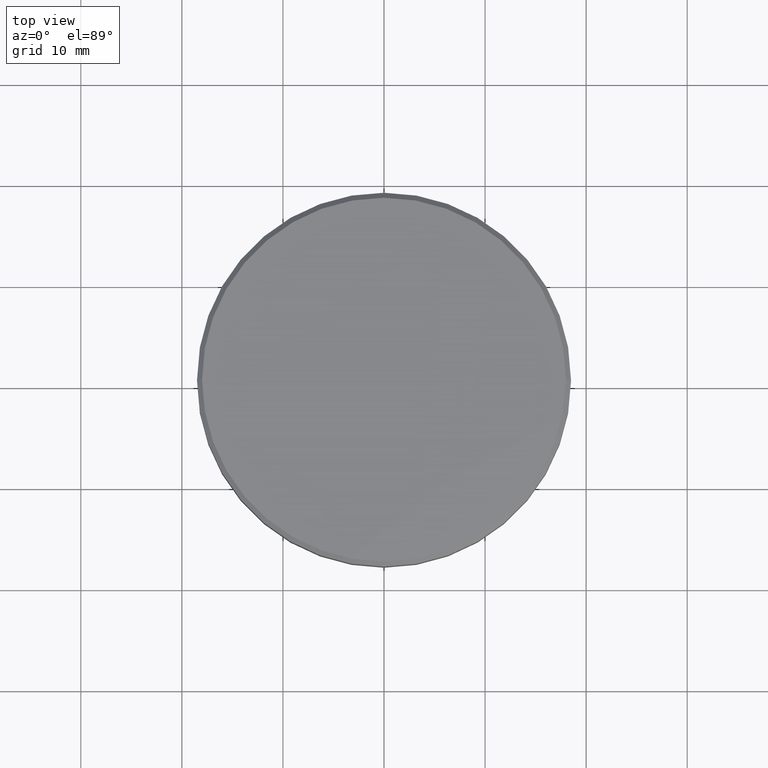
[diagram: clean part render]
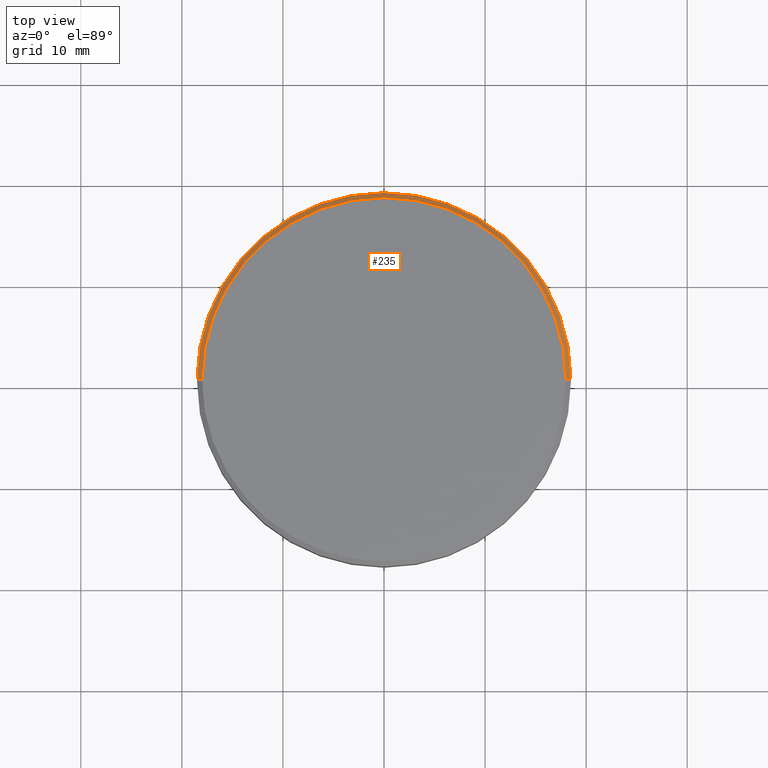
[diagram: same view with one face highlighted and labeled with its STEP entity id]
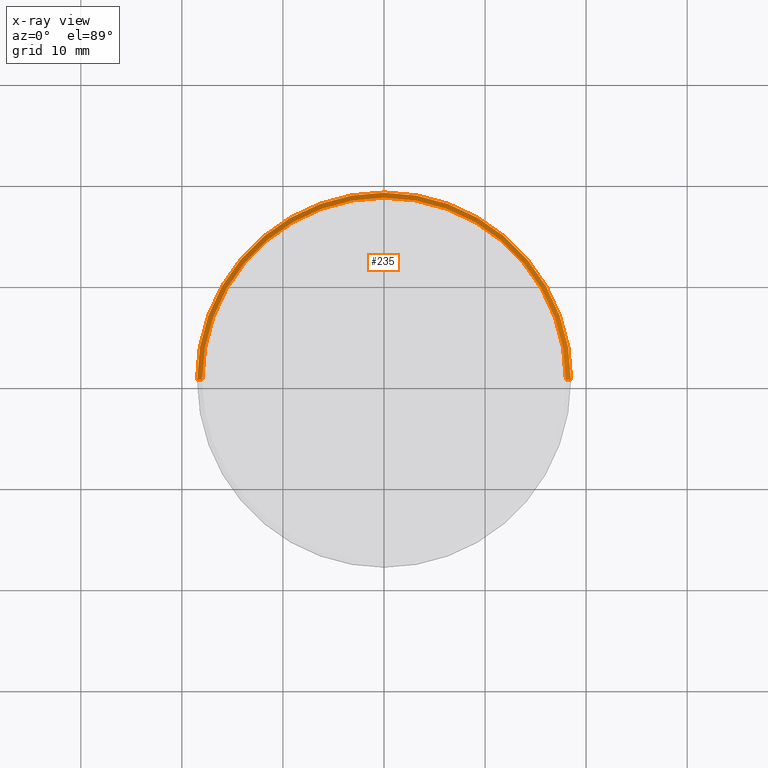
[diagram: x-ray of the same camera — body ghosted, the highlighted face saturated]
A machine part, top view. The second image highlights one B-rep face of the part: STEP entity #235.
The next image is the same camera in x-ray: the body ghosted, the highlighted face saturated — about 0% of this face is hidden behind the body in this view.
In plain terms, the highlighted conical surface has half-angle 45 deg.
Its self-contained STEP definition (entity closure, byte-faithful):
#4 = CARTESIAN_POINT ( 'NONE',  ( 0.000000000000000000, 0.000000000000000000, 0.000000000000000000 ) ) ;
#10 = VERTEX_POINT ( 'NONE', #147 ) ;
#12 = CARTESIAN_POINT ( 'NONE',  ( -18.00000000000000355, 0.000000000000000000, 0.000000000000000000 ) ) ;
#13 = EDGE_CURVE ( 'NONE', #177, #10, #153, .T. ) ;
#14 = DIRECTION ( 'NONE',  ( -0.000000000000000000, -0.000000000000000000, 1.000000000000000000 ) ) ;
#18 = CIRCLE ( 'NONE', #348, 18.50000000000000000 ) ;
#23 = CARTESIAN_POINT ( 'NONE',  ( 0.000000000000000000, 0.000000000000000000, -0.5000000000000004441 ) ) ;
#31 = LINE ( 'NONE', #280, #141 ) ;
#41 = VECTOR ( 'NONE', #245, 1000.000000000000114 ) ;
#47 = DIRECTION ( 'NONE',  ( -1.000000000000000000, 0.000000000000000000, 0.000000000000000000 ) ) ;
#57 = EDGE_LOOP ( 'NONE', ( #295, #303, #378, #298 ) ) ;
#60 = VERTEX_POINT ( 'NONE', #181 ) ;
#73 = FACE_OUTER_BOUND ( 'NONE', #57, .T. ) ;
#96 = CIRCLE ( 'NONE', #319, 18.00000000000000355 ) ;
#105 = DIRECTION ( 'NONE',  ( 0.000000000000000000, 0.000000000000000000, -1.000000000000000000 ) ) ;
#113 = VERTEX_POINT ( 'NONE', #12 ) ;
#135 = CARTESIAN_POINT ( 'NONE',  ( 18.00000000000000355, 2.234980408443919609E-15, 0.000000000000000000 ) ) ;
#141 = VECTOR ( 'NONE', #252, 1000.000000000000114 ) ;
#147 = CARTESIAN_POINT ( 'NONE',  ( 18.50000000000000000, 0.000000000000000000, -0.5000000000000004441 ) ) ;
#150 = DIRECTION ( 'NONE',  ( 1.000000000000000000, 0.000000000000000000, 0.000000000000000000 ) ) ;
#153 = LINE ( 'NONE', #394, #41 ) ;
#155 = EDGE_CURVE ( 'NONE', #113, #60, #31, .T. ) ;
#164 = CONICAL_SURFACE ( 'NONE', #239, 18.00000000000000355, 0.7853981633974447263 ) ;
#177 = VERTEX_POINT ( 'NONE', #135 ) ;
#181 = CARTESIAN_POINT ( 'NONE',  ( -18.50000000000000000, 2.265596578422603396E-15, -0.5000000000000004441 ) ) ;
#235 = ADVANCED_FACE ( 'NONE', ( #73 ), #164, .T. ) ;
#239 = AXIS2_PLACEMENT_3D ( 'NONE', #4, #105, #47 ) ;
#240 = DIRECTION ( 'NONE',  ( 0.000000000000000000, 0.000000000000000000, -1.000000000000000000 ) ) ;
#245 = DIRECTION ( 'NONE',  ( 0.7071067811865451302, 8.659560562354903276E-17, -0.7071067811865500152 ) ) ;
#252 = DIRECTION ( 'NONE',  ( -0.7071067811865451302, 0.000000000000000000, -0.7071067811865500152 ) ) ;
#280 = CARTESIAN_POINT ( 'NONE',  ( -18.00000000000000355, 0.000000000000000000, 0.000000000000000000 ) ) ;
#295 = ORIENTED_EDGE ( 'NONE', *, *, #345, .F. ) ;
#298 = ORIENTED_EDGE ( 'NONE', *, *, #155, .F. ) ;
#303 = ORIENTED_EDGE ( 'NONE', *, *, #13, .T. ) ;
#319 = AXIS2_PLACEMENT_3D ( 'NONE', #337, #14, #389 ) ;
#337 = CARTESIAN_POINT ( 'NONE',  ( 0.000000000000000000, 0.000000000000000000, 0.000000000000000000 ) ) ;
#345 = EDGE_CURVE ( 'NONE', #177, #113, #96, .T. ) ;
#348 = AXIS2_PLACEMENT_3D ( 'NONE', #23, #240, #150 ) ;
#378 = ORIENTED_EDGE ( 'NONE', *, *, #397, .F. ) ;
#389 = DIRECTION ( 'NONE',  ( 1.000000000000000000, 0.000000000000000000, 0.000000000000000000 ) ) ;
#394 = CARTESIAN_POINT ( 'NONE',  ( 18.00000000000000355, 2.204364238465235822E-15, 0.000000000000000000 ) ) ;
#397 = EDGE_CURVE ( 'NONE', #60, #10, #18, .T. ) ;